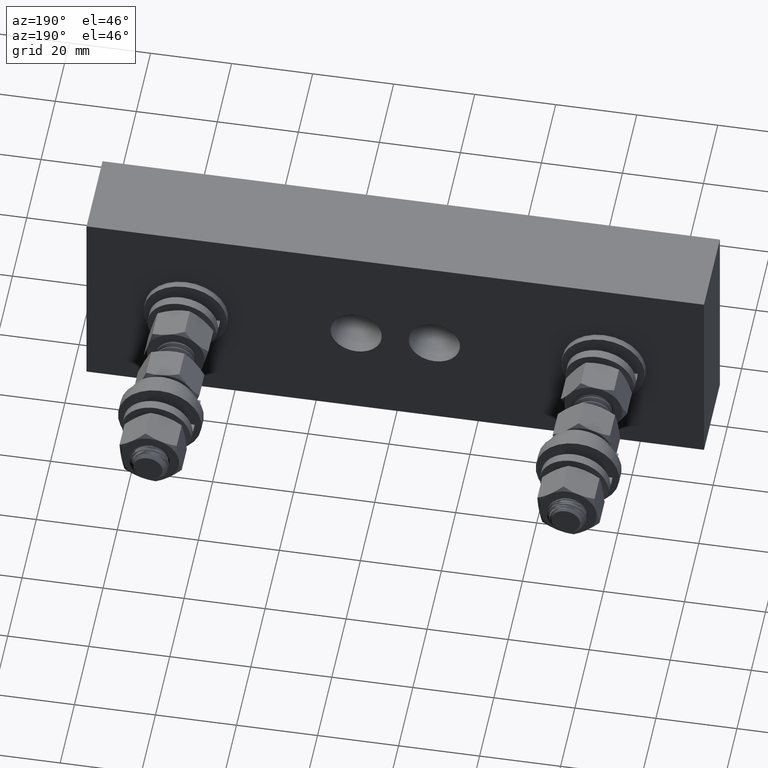
[diagram: clean part render]
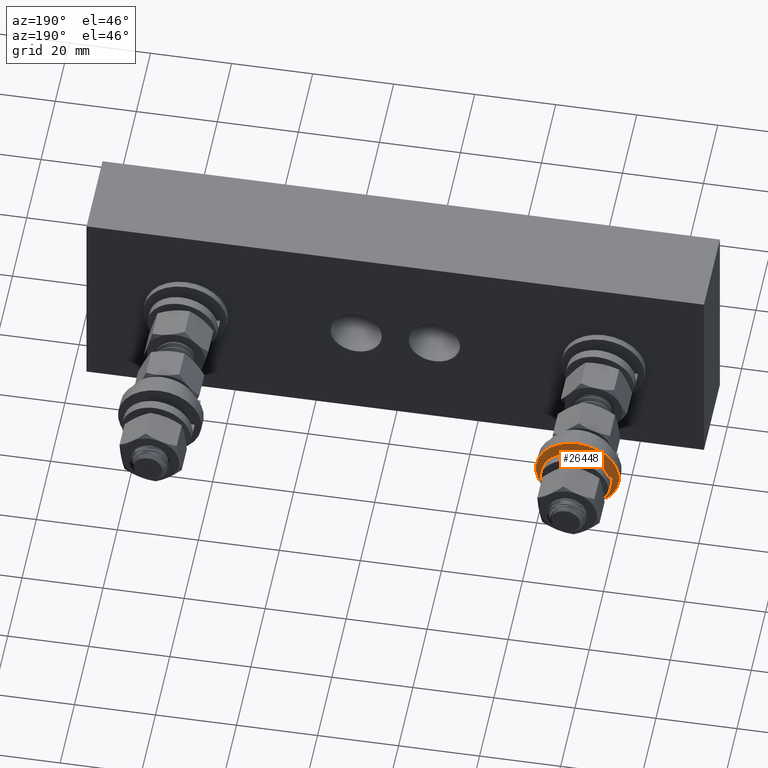
[diagram: same view with one face highlighted and labeled with its STEP entity id]
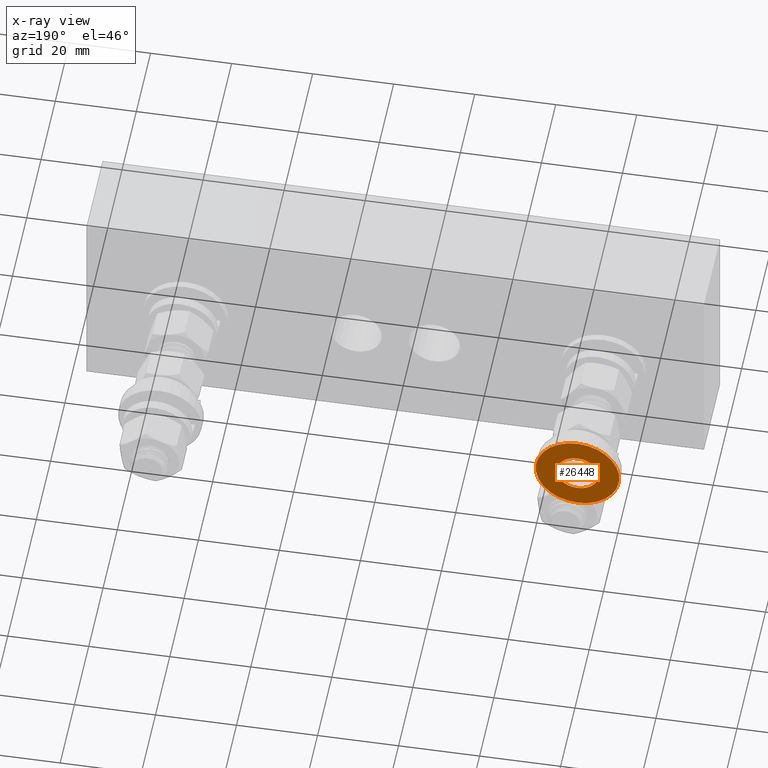
[diagram: x-ray of the same camera — body ghosted, the highlighted face saturated]
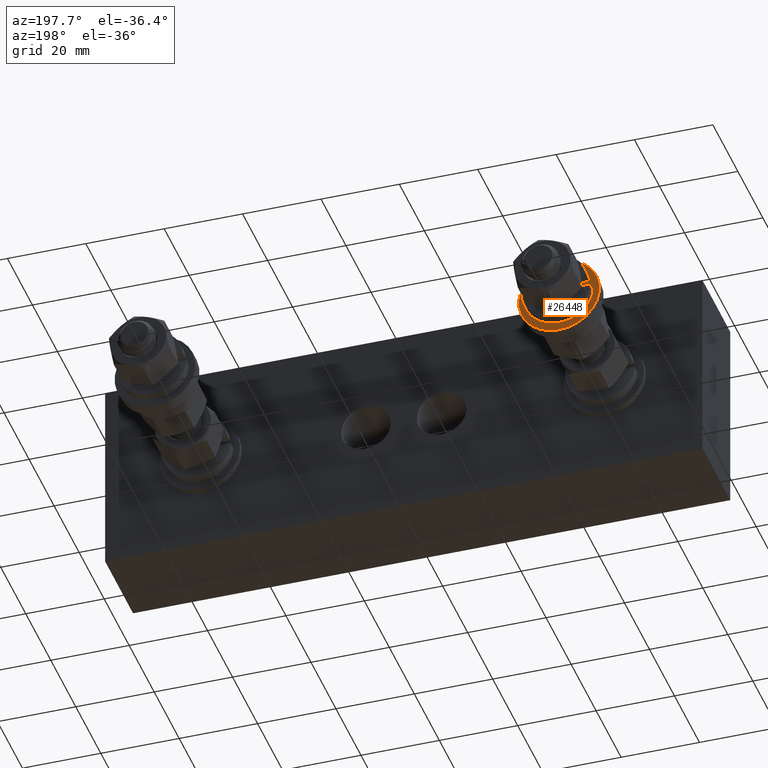
[diagram: same view with one face highlighted and labeled with its STEP entity id]
A machine part, auxiliary view. The second image highlights one B-rep face of the part: STEP entity #26448.
The next image is the same camera in x-ray: the body ghosted, the highlighted face saturated — about 1% of this face is hidden behind the body in this view.
A second angle (auxiliary view) of the same face is appended — the face is thin or edge-on in the first view.
In plain terms, the highlighted planar face has unit normal (0, 1, 0).
Its self-contained STEP definition (entity closure, byte-faithful):
#3209 = AXIS2_PLACEMENT_3D ( 'NONE', #12198, #12199, #12200 ) ;
#10822 = EDGE_LOOP ( 'NONE', ( #28128, #28449 ) ) ;
#10954 = EDGE_LOOP ( 'NONE', ( #28109, #28365 ) ) ;
#11387 = FACE_OUTER_BOUND ( 'NONE', #10954, .T. ) ;
#11391 = FACE_BOUND ( 'NONE', #10822, .T. ) ;
#12190 = PLANE ( 'NONE',  #3209 ) ;
#12198 = CARTESIAN_POINT ( 'NONE',  ( -2.029999999999999400, 1.908125000000000100, -4.668314295094806400E-016 ) ) ;
#12199 = DIRECTION ( 'NONE',  ( 0.0000000000000000000, 1.000000000000000000, 0.0000000000000000000 ) ) ;
#12200 = DIRECTION ( 'NONE',  ( 0.0000000000000000000, -0.0000000000000000000, 1.000000000000000000 ) ) ;
#14615 = AXIS2_PLACEMENT_3D ( 'NONE', #17836, #17837, #17838 ) ;
#14617 = AXIS2_PLACEMENT_3D ( 'NONE', #17846, #17847, #17848 ) ;
#14619 = AXIS2_PLACEMENT_3D ( 'NONE', #17852, #17853, #17854 ) ;
#14620 = AXIS2_PLACEMENT_3D ( 'NONE', #17855, #17856, #17857 ) ;
#15136 = CIRCLE ( 'NONE', #14615, 0.2029999999999999900 ) ;
#15142 = CIRCLE ( 'NONE', #14617, 0.4059999999999999700 ) ;
#15146 = CIRCLE ( 'NONE', #14619, 0.4059999999999999700 ) ;
#15147 = CIRCLE ( 'NONE', #14620, 0.2029999999999999900 ) ;
#17836 = CARTESIAN_POINT ( 'NONE',  ( -2.029999999999999400, 1.908125000000000100, -4.668314295094806400E-016 ) ) ;
#17837 = DIRECTION ( 'NONE',  ( 0.0000000000000000000, 1.000000000000000000, 0.0000000000000000000 ) ) ;
#17838 = DIRECTION ( 'NONE',  ( 0.0000000000000000000, 0.0000000000000000000, 1.000000000000000000 ) ) ;
#17846 = CARTESIAN_POINT ( 'NONE',  ( -2.029999999999999400, 1.908125000000000100, -4.668314295094806400E-016 ) ) ;
#17847 = DIRECTION ( 'NONE',  ( 0.0000000000000000000, 1.000000000000000000, 0.0000000000000000000 ) ) ;
#17848 = DIRECTION ( 'NONE',  ( 0.0000000000000000000, 0.0000000000000000000, 1.000000000000000000 ) ) ;
#17852 = CARTESIAN_POINT ( 'NONE',  ( -2.029999999999999400, 1.908125000000000100, -4.668314295094806400E-016 ) ) ;
#17853 = DIRECTION ( 'NONE',  ( 0.0000000000000000000, 1.000000000000000000, 0.0000000000000000000 ) ) ;
#17854 = DIRECTION ( 'NONE',  ( 0.0000000000000000000, 0.0000000000000000000, 1.000000000000000000 ) ) ;
#17855 = CARTESIAN_POINT ( 'NONE',  ( -2.029999999999999400, 1.908125000000000100, -4.668314295094806400E-016 ) ) ;
#17856 = DIRECTION ( 'NONE',  ( 0.0000000000000000000, 1.000000000000000000, 0.0000000000000000000 ) ) ;
#17857 = DIRECTION ( 'NONE',  ( 0.0000000000000000000, 0.0000000000000000000, 1.000000000000000000 ) ) ;
#20497 = CARTESIAN_POINT ( 'NONE',  ( -2.029999999999999400, 1.908125000000000100, -0.4060000000000004700 ) ) ;
#20509 = CARTESIAN_POINT ( 'NONE',  ( -2.029999999999999400, 1.908125000000000100, 0.4059999999999995300 ) ) ;
#20520 = CARTESIAN_POINT ( 'NONE',  ( -2.029999999999999400, 1.908125000000000100, 0.2029999999999995100 ) ) ;
#24916 = VERTEX_POINT ( 'NONE', #45649 ) ;
#26448 = ADVANCED_FACE ( 'NONE', ( #11387, #11391 ), #12190, .T. ) ;
#26741 = EDGE_CURVE ( 'NONE', #24916, #44289, #15136, .T. ) ;
#26746 = EDGE_CURVE ( 'NONE', #44283, #44268, #15142, .T. ) ;
#26748 = EDGE_CURVE ( 'NONE', #44268, #44283, #15146, .T. ) ;
#26749 = EDGE_CURVE ( 'NONE', #44289, #24916, #15147, .T. ) ;
#28109 = ORIENTED_EDGE ( 'NONE', *, *, #26748, .T. ) ;
#28128 = ORIENTED_EDGE ( 'NONE', *, *, #26741, .F. ) ;
#28365 = ORIENTED_EDGE ( 'NONE', *, *, #26746, .T. ) ;
#28449 = ORIENTED_EDGE ( 'NONE', *, *, #26749, .F. ) ;
#44268 = VERTEX_POINT ( 'NONE', #20497 ) ;
#44283 = VERTEX_POINT ( 'NONE', #20509 ) ;
#44289 = VERTEX_POINT ( 'NONE', #20520 ) ;
#45649 = CARTESIAN_POINT ( 'NONE',  ( -2.029999999999999400, 1.908125000000000100, -0.2030000000000004600 ) ) ;